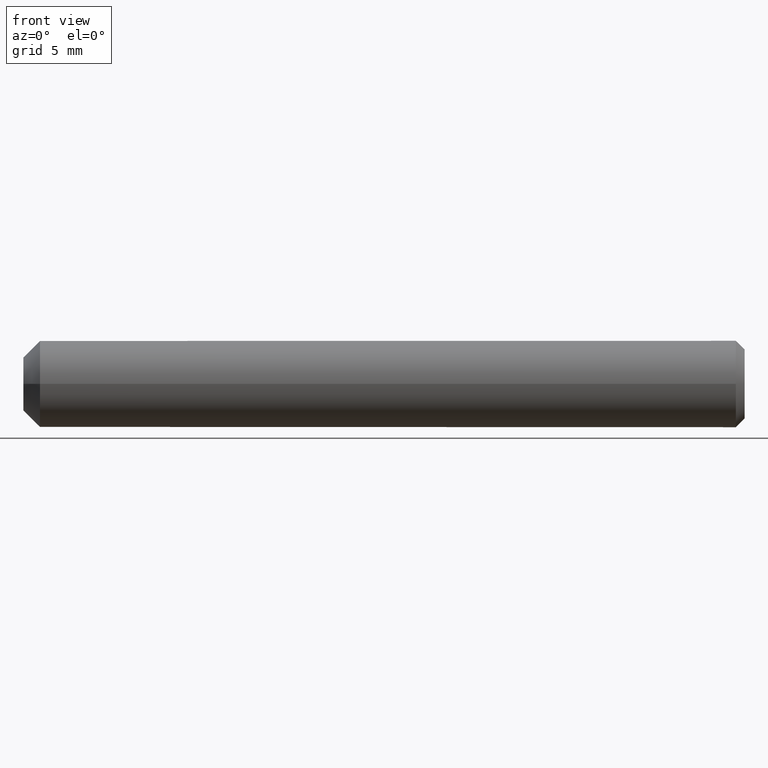
[diagram: clean part render]
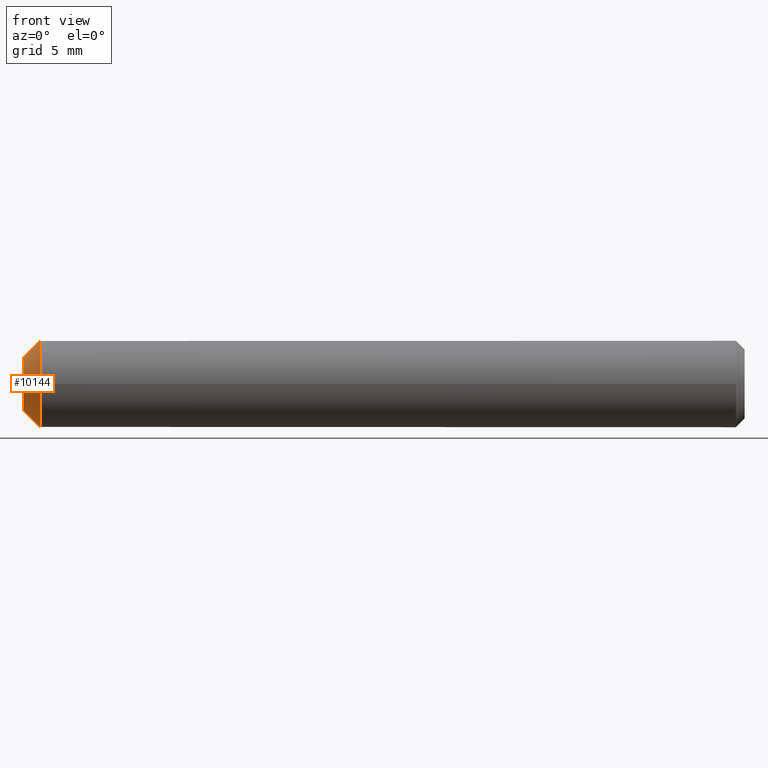
[diagram: same view with one face highlighted and labeled with its STEP entity id]
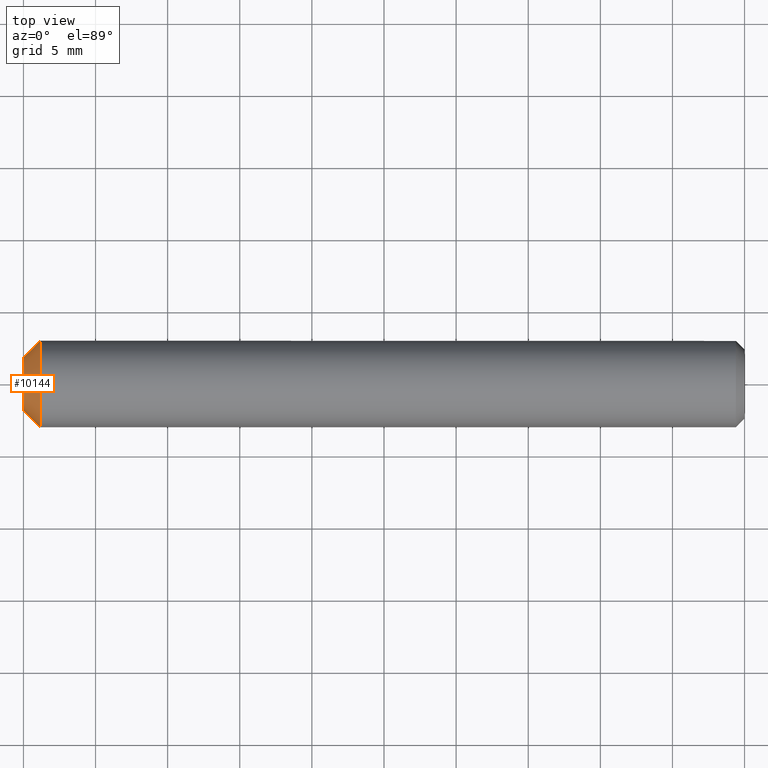
[diagram: same view with one face highlighted and labeled with its STEP entity id]
A machine part, front view. The second image highlights one B-rep face of the part: STEP entity #10144.
A second angle (top view) of the same face is appended — the face is thin or edge-on in the first view.
In plain terms, the highlighted conical surface has half-angle 45 deg.
Its self-contained STEP definition (entity closure, byte-faithful):
#392 = CARTESIAN_POINT ( 'NONE',  ( 6.583535126773202600E-018, -2.598485970484035100E-034, 0.0000000000000000000 ) ) ;
#894 = VERTEX_POINT ( 'NONE', #14333 ) ;
#907 = CARTESIAN_POINT ( 'NONE',  ( 1.149999999999991000, -4.538988261647290200E-017, 0.0000000000000000000 ) ) ;
#968 = DIRECTION ( 'NONE',  ( -7.228014483236694600E-017, -1.000000000000000000, 0.0000000000000000000 ) ) ;
#2400 = CARTESIAN_POINT ( 'NONE',  ( -6.643497169103160400E-017, -1.850000000000000100, 0.0000000000000000000 ) ) ;
#3637 = FACE_OUTER_BOUND ( 'NONE', #10625, .T. ) ;
#3964 = ORIENTED_EDGE ( 'NONE', *, *, #9900, .T. ) ;
#4062 = EDGE_LOOP ( 'NONE', ( #17670 ) ) ;
#4611 = DIRECTION ( 'NONE',  ( 1.000000000000000000, -3.946946314475935200E-017, 0.0000000000000000000 ) ) ;
#6324 = AXIS2_PLACEMENT_3D ( 'NONE', #907, #9588, #968 ) ;
#6558 = CONICAL_SURFACE ( 'NONE', #11139, 1.850000000000000100, 0.7853981633974523900 ) ;
#7232 = CIRCLE ( 'NONE', #6324, 3.000000000000000400 ) ;
#9073 = DIRECTION ( 'NONE',  ( 3.946946314475935200E-017, 1.000000000000000000, 0.0000000000000000000 ) ) ;
#9372 = DIRECTION ( 'NONE',  ( -1.000000000000000000, 3.946946314475935200E-017, -0.0000000000000000000 ) ) ;
#9588 = DIRECTION ( 'NONE',  ( -1.000000000000000000, 3.946946314475935200E-017, -0.0000000000000000000 ) ) ;
#9900 = EDGE_CURVE ( 'NONE', #894, #894, #7232, .T. ) ;
#10144 = ADVANCED_FACE ( 'NONE', ( #3637, #13064 ), #6558, .T. ) ;
#10625 = EDGE_LOOP ( 'NONE', ( #3964 ) ) ;
#10690 = AXIS2_PLACEMENT_3D ( 'NONE', #10829, #9372, #12029 ) ;
#10829 = CARTESIAN_POINT ( 'NONE',  ( 6.583535126773202600E-018, -2.598485970484035100E-034, 0.0000000000000000000 ) ) ;
#11139 = AXIS2_PLACEMENT_3D ( 'NONE', #392, #4611, #9073 ) ;
#12029 = DIRECTION ( 'NONE',  ( -3.946946314475935200E-017, -1.000000000000000000, 0.0000000000000000000 ) ) ;
#13064 = FACE_BOUND ( 'NONE', #4062, .T. ) ;
#13368 = CIRCLE ( 'NONE', #10690, 1.850000000000000100 ) ;
#13879 = EDGE_CURVE ( 'NONE', #16646, #16646, #13368, .T. ) ;
#14333 = CARTESIAN_POINT ( 'NONE',  ( 1.149999999999990800, -3.000000000000000400, 0.0000000000000000000 ) ) ;
#16646 = VERTEX_POINT ( 'NONE', #2400 ) ;
#17670 = ORIENTED_EDGE ( 'NONE', *, *, #13879, .F. ) ;